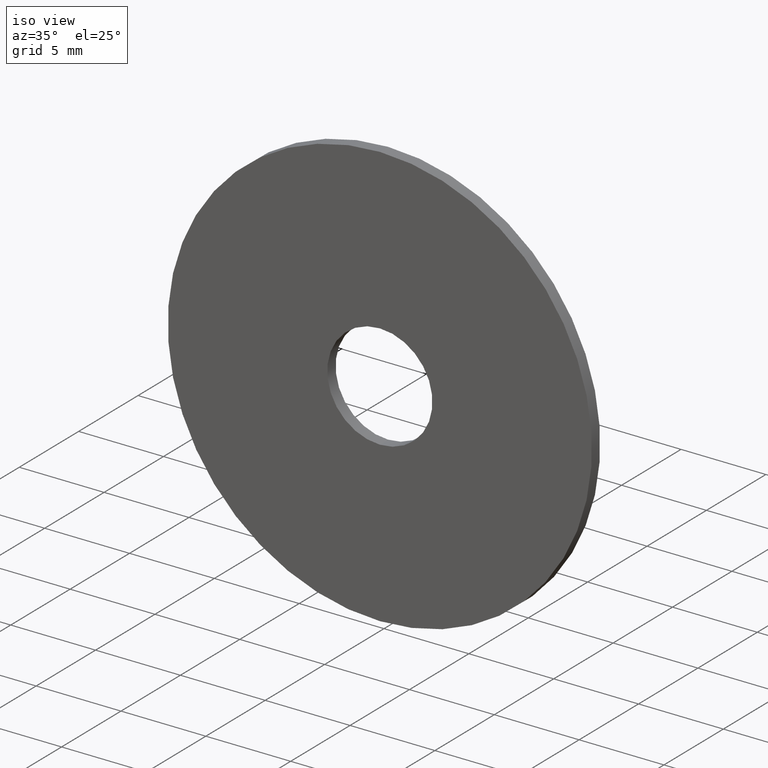
[diagram: clean part render]
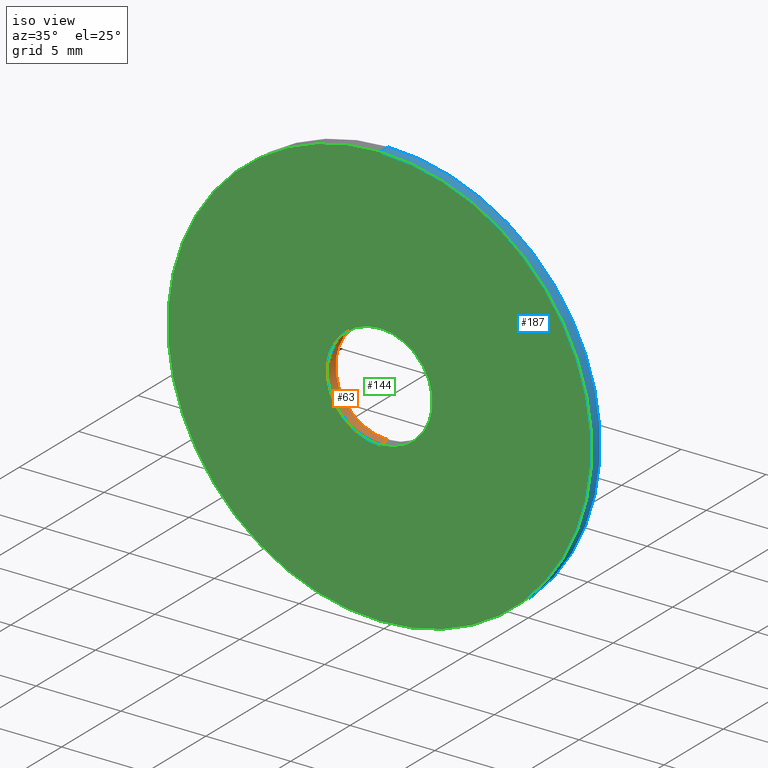
[diagram: same view with three faces highlighted in distinct colors, each labeled with its STEP entity id]
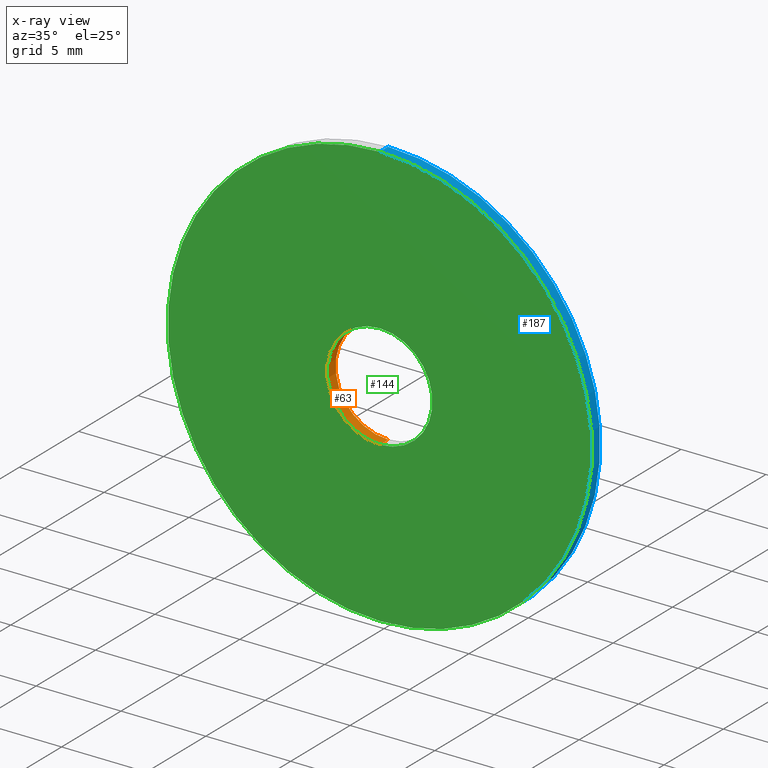
[diagram: x-ray of the same camera — body ghosted, the three highlighted faces saturated]
A machine part, iso view with three faces highlighted in distinct colors.
The next image is the same camera in x-ray (body ghosted, the three faces saturated) — at least one of them is partly hidden behind the body in this view.
Their STEP definitions:

[orange] entity #63 — the highlighted cylindrical surface (partial cylindrical patch) has radius 3.1 mm, axis along (-0, 1, -0).
#7 = EDGE_LOOP ( 'NONE', ( #164, #124, #72, #11 ) ) ;
#9 = VERTEX_POINT ( 'NONE', #239 ) ;
#11 = ORIENTED_EDGE ( 'NONE', *, *, #95, .F. ) ;
#24 = DIRECTION ( 'NONE',  ( 0.000000000000000000, 0.000000000000000000, 1.000000000000000000 ) ) ;
#32 = EDGE_CURVE ( 'NONE', #216, #123, #84, .T. ) ;
#37 = CARTESIAN_POINT ( 'NONE',  ( 0.000000000000000000, -0.3499999999999999778, 0.000000000000000000 ) ) ;
#42 = CARTESIAN_POINT ( 'NONE',  ( 0.000000000000000000, -0.3499999999999999778, 3.100000000000000089 ) ) ;
#53 = AXIS2_PLACEMENT_3D ( 'NONE', #37, #134, #24 ) ;
#56 = CYLINDRICAL_SURFACE ( 'NONE', #53, 3.100000000000000089 ) ;
#57 = VERTEX_POINT ( 'NONE', #94 ) ;
#62 = CARTESIAN_POINT ( 'NONE',  ( 0.000000000000000000, 0.3499999999999999778, 0.000000000000000000 ) ) ;
#63 = ADVANCED_FACE ( 'NONE', ( #91 ), #56, .F. ) ;
#64 = VECTOR ( 'NONE', #177, 1000.000000000000000 ) ;
#71 = AXIS2_PLACEMENT_3D ( 'NONE', #62, #156, #152 ) ;
#72 = ORIENTED_EDGE ( 'NONE', *, *, #32, .T. ) ;
#73 = CARTESIAN_POINT ( 'NONE',  ( 3.796405077356794918E-16, -0.3499999999999999778, -3.100000000000000089 ) ) ;
#84 = CIRCLE ( 'NONE', #71, 3.100000000000000089 ) ;
#91 = FACE_OUTER_BOUND ( 'NONE', #7, .T. ) ;
#94 = CARTESIAN_POINT ( 'NONE',  ( 0.000000000000000000, -0.3499999999999999778, 3.100000000000000089 ) ) ;
#95 = EDGE_CURVE ( 'NONE', #57, #123, #138, .T. ) ;
#96 = DIRECTION ( 'NONE',  ( -0.000000000000000000, 1.000000000000000000, -0.000000000000000000 ) ) ;
#101 = CARTESIAN_POINT ( 'NONE',  ( 3.796405077356794918E-16, 0.3499999999999999778, -3.100000000000000089 ) ) ;
#102 = CIRCLE ( 'NONE', #133, 3.100000000000000089 ) ;
#103 = EDGE_CURVE ( 'NONE', #9, #216, #175, .T. ) ;
#123 = VERTEX_POINT ( 'NONE', #235 ) ;
#124 = ORIENTED_EDGE ( 'NONE', *, *, #103, .T. ) ;
#133 = AXIS2_PLACEMENT_3D ( 'NONE', #166, #163, #225 ) ;
#134 = DIRECTION ( 'NONE',  ( -0.000000000000000000, 1.000000000000000000, -0.000000000000000000 ) ) ;
#138 = LINE ( 'NONE', #42, #171 ) ;
#152 = DIRECTION ( 'NONE',  ( 0.000000000000000000, 0.000000000000000000, 1.000000000000000000 ) ) ;
#156 = DIRECTION ( 'NONE',  ( 0.000000000000000000, 1.000000000000000000, 0.000000000000000000 ) ) ;
#163 = DIRECTION ( 'NONE',  ( 0.000000000000000000, 1.000000000000000000, 0.000000000000000000 ) ) ;
#164 = ORIENTED_EDGE ( 'NONE', *, *, #169, .F. ) ;
#166 = CARTESIAN_POINT ( 'NONE',  ( 0.000000000000000000, -0.3499999999999999778, 0.000000000000000000 ) ) ;
#169 = EDGE_CURVE ( 'NONE', #9, #57, #102, .T. ) ;
#171 = VECTOR ( 'NONE', #96, 1000.000000000000000 ) ;
#175 = LINE ( 'NONE', #73, #64 ) ;
#177 = DIRECTION ( 'NONE',  ( -0.000000000000000000, 1.000000000000000000, -0.000000000000000000 ) ) ;
#216 = VERTEX_POINT ( 'NONE', #101 ) ;
#225 = DIRECTION ( 'NONE',  ( 0.000000000000000000, 0.000000000000000000, 1.000000000000000000 ) ) ;
#235 = CARTESIAN_POINT ( 'NONE',  ( 0.000000000000000000, 0.3499999999999999778, 3.100000000000000089 ) ) ;
#239 = CARTESIAN_POINT ( 'NONE',  ( 3.796405077356794918E-16, -0.3499999999999999778, -3.100000000000000089 ) ) ;

[blue] entity #187 — the highlighted cylindrical surface (partial cylindrical patch) has radius 12.5 mm, axis along (-0, -1, -0).
#1 = VERTEX_POINT ( 'NONE', #26 ) ;
#4 = AXIS2_PLACEMENT_3D ( 'NONE', #33, #182, #120 ) ;
#6 = DIRECTION ( 'NONE',  ( 0.000000000000000000, 0.000000000000000000, 1.000000000000000000 ) ) ;
#10 = ORIENTED_EDGE ( 'NONE', *, *, #85, .T. ) ;
#13 = DIRECTION ( 'NONE',  ( 0.000000000000000000, 1.000000000000000000, 0.000000000000000000 ) ) ;
#14 = CARTESIAN_POINT ( 'NONE',  ( 0.000000000000000000, 0.3499999999999999778, -12.50000000000000000 ) ) ;
#16 = DIRECTION ( 'NONE',  ( -0.000000000000000000, -1.000000000000000000, -0.000000000000000000 ) ) ;
#20 = AXIS2_PLACEMENT_3D ( 'NONE', #30, #13, #223 ) ;
#23 = CARTESIAN_POINT ( 'NONE',  ( 1.530808498934191521E-15, -0.3499999999999999778, 12.50000000000000000 ) ) ;
#26 = CARTESIAN_POINT ( 'NONE',  ( 0.000000000000000000, -0.3499999999999999778, -12.50000000000000000 ) ) ;
#28 = FACE_OUTER_BOUND ( 'NONE', #69, .T. ) ;
#30 = CARTESIAN_POINT ( 'NONE',  ( 0.000000000000000000, 0.3499999999999999778, 0.000000000000000000 ) ) ;
#31 = DIRECTION ( 'NONE',  ( -0.000000000000000000, -1.000000000000000000, -0.000000000000000000 ) ) ;
#33 = CARTESIAN_POINT ( 'NONE',  ( 0.000000000000000000, 0.3499999999999999778, 0.000000000000000000 ) ) ;
#44 = VERTEX_POINT ( 'NONE', #23 ) ;
#69 = EDGE_LOOP ( 'NONE', ( #154, #228, #10, #87 ) ) ;
#81 = CARTESIAN_POINT ( 'NONE',  ( 0.000000000000000000, 0.3499999999999999778, -12.50000000000000000 ) ) ;
#85 = EDGE_CURVE ( 'NONE', #44, #1, #122, .T. ) ;
#87 = ORIENTED_EDGE ( 'NONE', *, *, #221, .F. ) ;
#90 = VECTOR ( 'NONE', #31, 1000.000000000000000 ) ;
#117 = CARTESIAN_POINT ( 'NONE',  ( 1.530808498934191521E-15, 0.3499999999999999778, 12.50000000000000000 ) ) ;
#120 = DIRECTION ( 'NONE',  ( 0.000000000000000000, 0.000000000000000000, -1.000000000000000000 ) ) ;
#122 = CIRCLE ( 'NONE', #197, 12.50000000000000000 ) ;
#126 = VERTEX_POINT ( 'NONE', #219 ) ;
#143 = CYLINDRICAL_SURFACE ( 'NONE', #4, 12.50000000000000000 ) ;
#154 = ORIENTED_EDGE ( 'NONE', *, *, #242, .F. ) ;
#173 = CARTESIAN_POINT ( 'NONE',  ( 0.000000000000000000, -0.3499999999999999778, 0.000000000000000000 ) ) ;
#182 = DIRECTION ( 'NONE',  ( -0.000000000000000000, -1.000000000000000000, -0.000000000000000000 ) ) ;
#183 = VECTOR ( 'NONE', #16, 1000.000000000000000 ) ;
#185 = LINE ( 'NONE', #117, #183 ) ;
#187 = ADVANCED_FACE ( 'NONE', ( #28 ), #143, .T. ) ;
#189 = VERTEX_POINT ( 'NONE', #14 ) ;
#195 = DIRECTION ( 'NONE',  ( 0.000000000000000000, 1.000000000000000000, 0.000000000000000000 ) ) ;
#197 = AXIS2_PLACEMENT_3D ( 'NONE', #173, #195, #6 ) ;
#205 = LINE ( 'NONE', #81, #90 ) ;
#218 = EDGE_CURVE ( 'NONE', #126, #44, #185, .T. ) ;
#219 = CARTESIAN_POINT ( 'NONE',  ( 1.530808498934191521E-15, 0.3499999999999999778, 12.50000000000000000 ) ) ;
#221 = EDGE_CURVE ( 'NONE', #189, #1, #205, .T. ) ;
#223 = DIRECTION ( 'NONE',  ( 0.000000000000000000, 0.000000000000000000, 1.000000000000000000 ) ) ;
#228 = ORIENTED_EDGE ( 'NONE', *, *, #218, .T. ) ;
#242 = EDGE_CURVE ( 'NONE', #126, #189, #246, .T. ) ;
#246 = CIRCLE ( 'NONE', #20, 12.50000000000000000 ) ;

[green] entity #144 — the highlighted planar face has unit normal (0, 1, 0).
#1 = VERTEX_POINT ( 'NONE', #26 ) ;
#6 = DIRECTION ( 'NONE',  ( 0.000000000000000000, 0.000000000000000000, 1.000000000000000000 ) ) ;
#9 = VERTEX_POINT ( 'NONE', #239 ) ;
#23 = CARTESIAN_POINT ( 'NONE',  ( 1.530808498934191521E-15, -0.3499999999999999778, 12.50000000000000000 ) ) ;
#26 = CARTESIAN_POINT ( 'NONE',  ( 0.000000000000000000, -0.3499999999999999778, -12.50000000000000000 ) ) ;
#27 = CARTESIAN_POINT ( 'NONE',  ( 0.000000000000000000, -0.3499999999999999778, 0.000000000000000000 ) ) ;
#35 = AXIS2_PLACEMENT_3D ( 'NONE', #161, #65, #125 ) ;
#44 = VERTEX_POINT ( 'NONE', #23 ) ;
#47 = FACE_BOUND ( 'NONE', #157, .T. ) ;
#54 = EDGE_CURVE ( 'NONE', #57, #9, #77, .T. ) ;
#57 = VERTEX_POINT ( 'NONE', #94 ) ;
#61 = DIRECTION ( 'NONE',  ( 0.000000000000000000, 0.000000000000000000, 1.000000000000000000 ) ) ;
#65 = DIRECTION ( 'NONE',  ( 0.000000000000000000, 1.000000000000000000, 0.000000000000000000 ) ) ;
#77 = CIRCLE ( 'NONE', #212, 3.100000000000000089 ) ;
#85 = EDGE_CURVE ( 'NONE', #44, #1, #122, .T. ) ;
#94 = CARTESIAN_POINT ( 'NONE',  ( 0.000000000000000000, -0.3499999999999999778, 3.100000000000000089 ) ) ;
#102 = CIRCLE ( 'NONE', #133, 3.100000000000000089 ) ;
#104 = ORIENTED_EDGE ( 'NONE', *, *, #85, .F. ) ;
#112 = EDGE_LOOP ( 'NONE', ( #196, #104 ) ) ;
#114 = FACE_OUTER_BOUND ( 'NONE', #112, .T. ) ;
#119 = DIRECTION ( 'NONE',  ( 0.000000000000000000, -0.000000000000000000, 1.000000000000000000 ) ) ;
#122 = CIRCLE ( 'NONE', #197, 12.50000000000000000 ) ;
#125 = DIRECTION ( 'NONE',  ( 0.000000000000000000, 0.000000000000000000, 1.000000000000000000 ) ) ;
#133 = AXIS2_PLACEMENT_3D ( 'NONE', #166, #163, #225 ) ;
#142 = DIRECTION ( 'NONE',  ( 0.000000000000000000, 1.000000000000000000, 0.000000000000000000 ) ) ;
#144 = ADVANCED_FACE ( 'NONE', ( #47, #114 ), #200, .F. ) ;
#157 = EDGE_LOOP ( 'NONE', ( #206, #214 ) ) ;
#161 = CARTESIAN_POINT ( 'NONE',  ( 0.000000000000000000, -0.3499999999999999778, 0.000000000000000000 ) ) ;
#163 = DIRECTION ( 'NONE',  ( 0.000000000000000000, 1.000000000000000000, 0.000000000000000000 ) ) ;
#165 = CIRCLE ( 'NONE', #35, 12.50000000000000000 ) ;
#166 = CARTESIAN_POINT ( 'NONE',  ( 0.000000000000000000, -0.3499999999999999778, 0.000000000000000000 ) ) ;
#169 = EDGE_CURVE ( 'NONE', #9, #57, #102, .T. ) ;
#173 = CARTESIAN_POINT ( 'NONE',  ( 0.000000000000000000, -0.3499999999999999778, 0.000000000000000000 ) ) ;
#193 = CARTESIAN_POINT ( 'NONE',  ( 0.000000000000000000, -0.3499999999999999778, 0.000000000000000000 ) ) ;
#195 = DIRECTION ( 'NONE',  ( 0.000000000000000000, 1.000000000000000000, 0.000000000000000000 ) ) ;
#196 = ORIENTED_EDGE ( 'NONE', *, *, #207, .F. ) ;
#197 = AXIS2_PLACEMENT_3D ( 'NONE', #173, #195, #6 ) ;
#200 = PLANE ( 'NONE',  #227 ) ;
#206 = ORIENTED_EDGE ( 'NONE', *, *, #54, .T. ) ;
#207 = EDGE_CURVE ( 'NONE', #1, #44, #165, .T. ) ;
#211 = DIRECTION ( 'NONE',  ( 0.000000000000000000, 1.000000000000000000, 0.000000000000000000 ) ) ;
#212 = AXIS2_PLACEMENT_3D ( 'NONE', #193, #211, #61 ) ;
#214 = ORIENTED_EDGE ( 'NONE', *, *, #169, .T. ) ;
#225 = DIRECTION ( 'NONE',  ( 0.000000000000000000, 0.000000000000000000, 1.000000000000000000 ) ) ;
#227 = AXIS2_PLACEMENT_3D ( 'NONE', #27, #142, #119 ) ;
#239 = CARTESIAN_POINT ( 'NONE',  ( 3.796405077356794918E-16, -0.3499999999999999778, -3.100000000000000089 ) ) ;